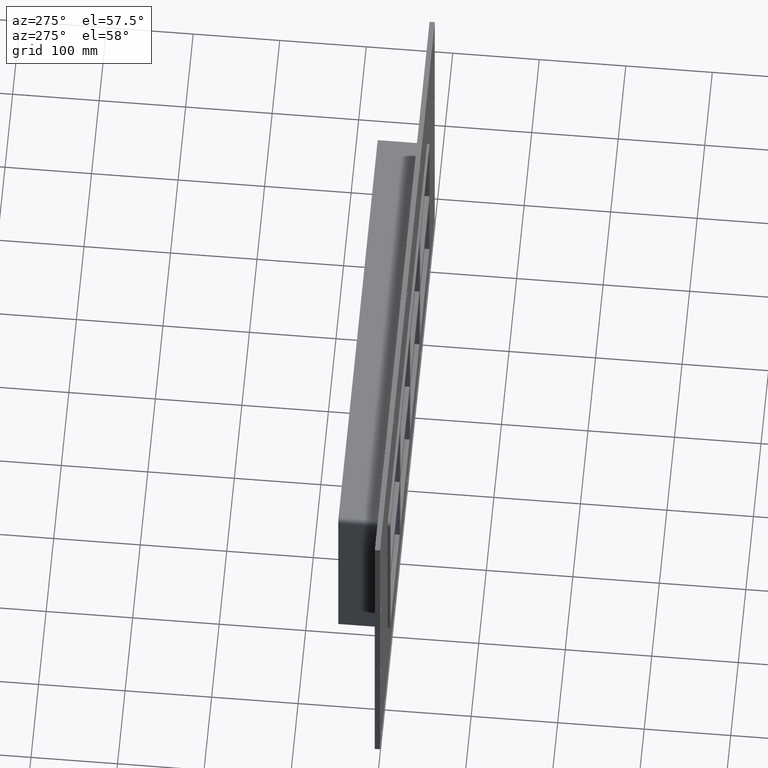
[diagram: clean part render]
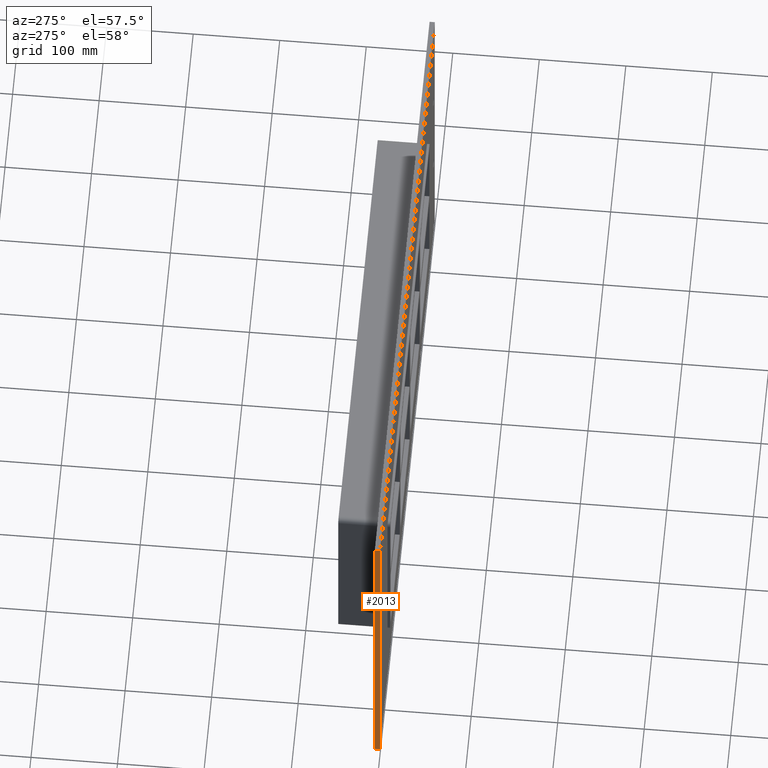
[diagram: same view with one face highlighted and labeled with its STEP entity id]
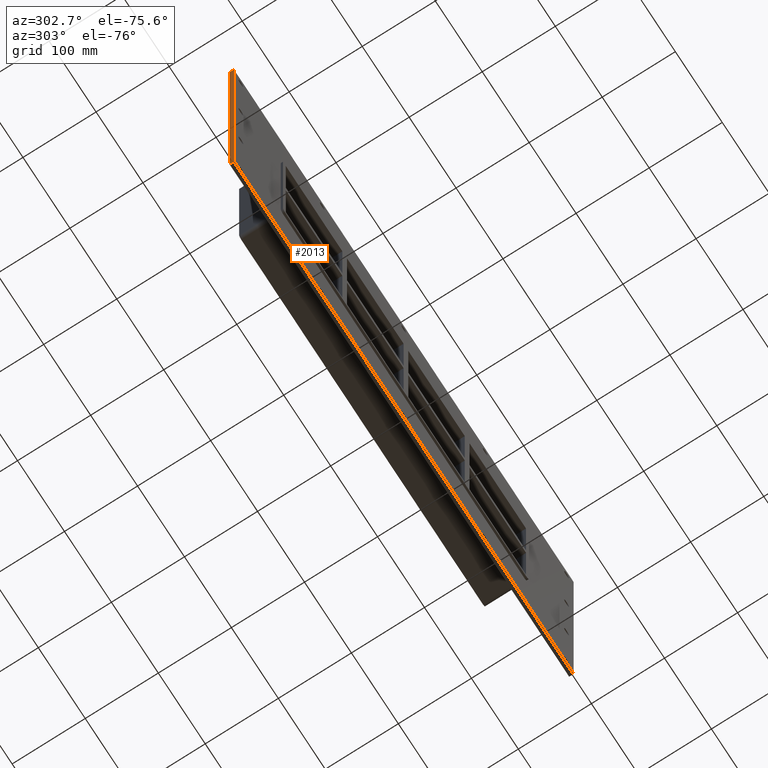
[diagram: same view with one face highlighted and labeled with its STEP entity id]
A machine part, auxiliary view. The second image highlights one B-rep face of the part: STEP entity #2013.
A second angle (auxiliary view) of the same face is appended — the face is thin or edge-on in the first view.
In plain terms, the highlighted planar face has unit normal (-1, 0, 0).
Its self-contained STEP definition (entity closure, byte-faithful):
#1693=CARTESIAN_POINT('',(-361.99999999999989,6.000000000000001,212.99999999999997));
#1694=VERTEX_POINT('',#1693);
#1711=CARTESIAN_POINT('',(-361.99999999999989,6.000000000000001,-212.99999999999997));
#1712=VERTEX_POINT('',#1711);
#1719=CARTESIAN_POINT('',(-361.99999999999989,6.000000000000001,-213.0));
#1720=DIRECTION('',(0.0,0.0,1.0));
#1721=VECTOR('',#1720,425.99999999999994);
#1722=LINE('',#1719,#1721);
#1723=EDGE_CURVE('',#1712,#1694,#1722,.T.);
#1845=CARTESIAN_POINT('',(-361.99999999999989,0.0,212.99999999999997));
#1846=VERTEX_POINT('',#1845);
#1855=CARTESIAN_POINT('',(-361.99999999999989,0.0,-213.0));
#1856=VERTEX_POINT('',#1855);
#1857=CARTESIAN_POINT('',(-361.99999999999989,0.0,-213.0));
#1858=DIRECTION('',(0.0,0.0,1.0));
#1859=VECTOR('',#1858,425.99999999999994);
#1860=LINE('',#1857,#1859);
#1861=EDGE_CURVE('',#1856,#1846,#1860,.T.);
#1992=CARTESIAN_POINT('',(-361.99999999999989,0.0,-213.0));
#1993=DIRECTION('',(-1.0,0.0,0.0));
#1994=DIRECTION('',(0.0,0.0,1.0));
#1995=AXIS2_PLACEMENT_3D('',#1992,#1993,#1994);
#1996=PLANE('',#1995);
#1997=ORIENTED_EDGE('',*,*,#1861,.T.);
#1998=CARTESIAN_POINT('',(-361.99999999999989,0.0,212.99999999999997));
#1999=DIRECTION('',(0.0,1.0,0.0));
#2000=VECTOR('',#1999,6.000000000000001);
#2001=LINE('',#1998,#2000);
#2002=EDGE_CURVE('',#1846,#1694,#2001,.T.);
#2003=ORIENTED_EDGE('',*,*,#2002,.T.);
#2004=ORIENTED_EDGE('',*,*,#1723,.F.);
#2005=CARTESIAN_POINT('',(-361.99999999999989,0.0,-213.0));
#2006=DIRECTION('',(0.0,1.0,0.0));
#2007=VECTOR('',#2006,6.000000000000001);
#2008=LINE('',#2005,#2007);
#2009=EDGE_CURVE('',#1856,#1712,#2008,.T.);
#2010=ORIENTED_EDGE('',*,*,#2009,.F.);
#2011=EDGE_LOOP('',(#1997,#2003,#2004,#2010));
#2012=FACE_OUTER_BOUND('',#2011,.T.);
#2013=ADVANCED_FACE('',(#2012),#1996,.T.);